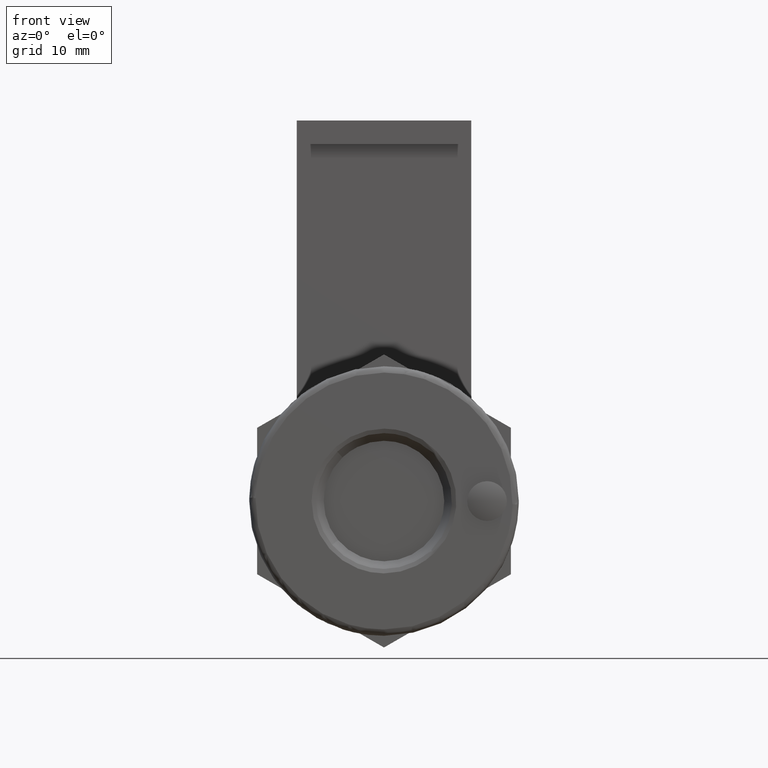
[diagram: clean part render]
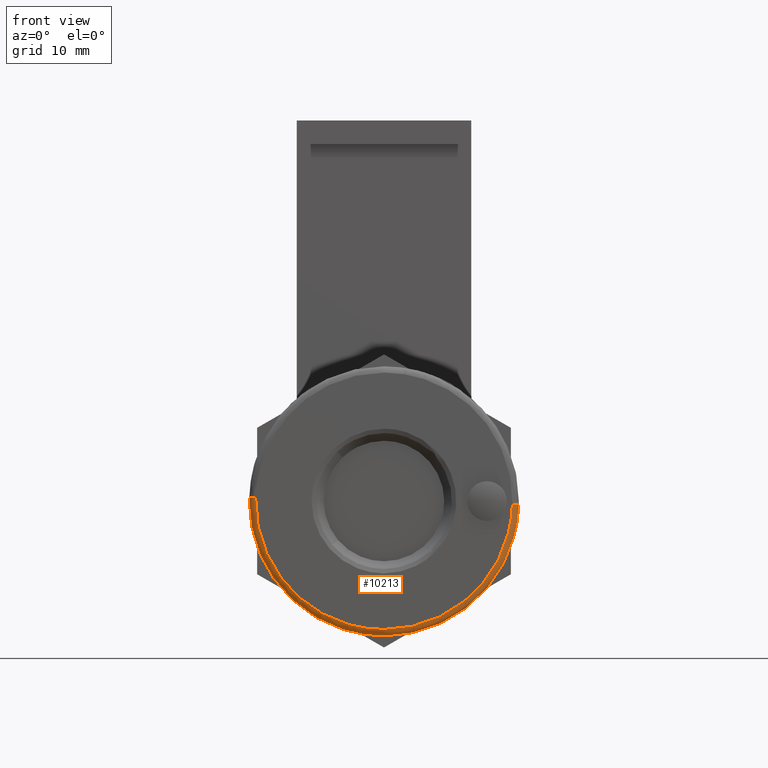
[diagram: same view with one face highlighted and labeled with its STEP entity id]
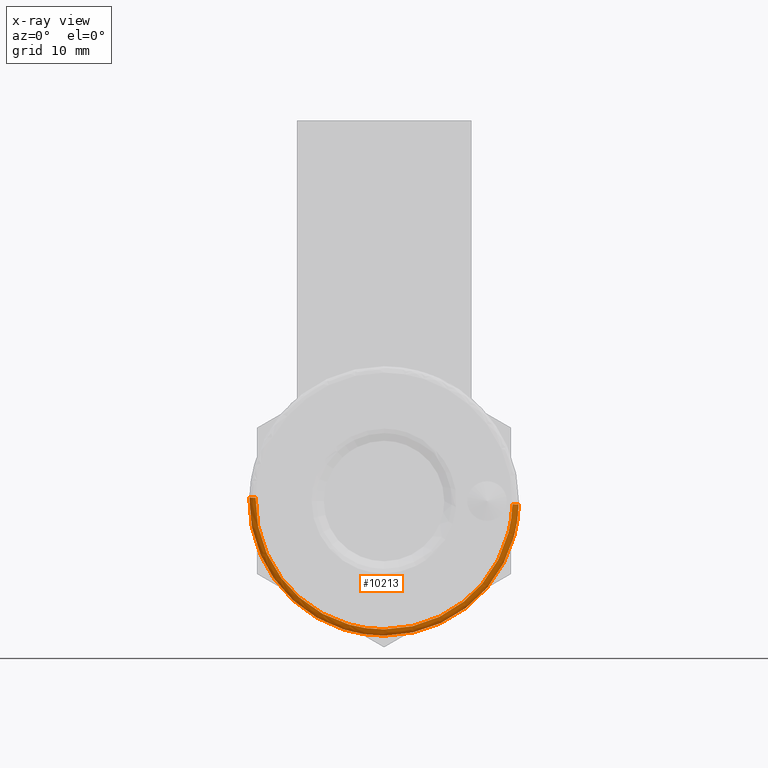
[diagram: x-ray of the same camera — body ghosted, the highlighted face saturated]
A machine part, front view. The second image highlights one B-rep face of the part: STEP entity #10213.
The next image is the same camera in x-ray: the body ghosted, the highlighted face saturated — about 0% of this face is hidden behind the body in this view.
In plain terms, the highlighted face is a freeform B-spline surface patch.
Its self-contained STEP definition (entity closure, byte-faithful):
#9337=CARTESIAN_POINT('',(0.799999997301152,16.994631217812518,0.427211622679786));
#9338=VERTEX_POINT('',#9337);
#9349=CARTESIAN_POINT('',(0.800000000000210,1.421085E-014,17.0));
#9350=VERTEX_POINT('',#9349);
#9351=CARTESIAN_POINT('',(0.800000000000210,1.421085E-014,17.0));
#9352=CARTESIAN_POINT('',(0.800000000000218,0.957984808335727,17.000049887310400));
#9353=CARTESIAN_POINT('',(0.799999999971894,3.010827373990566,16.826118522341769));
#9354=CARTESIAN_POINT('',(0.799999999848426,5.796921117886202,16.068031509752000));
#9355=CARTESIAN_POINT('',(0.799999999664894,8.223736378310123,14.941055646660971));
#9356=CARTESIAN_POINT('',(0.799999999464875,10.124646132967120,13.712975426185141));
#9357=CARTESIAN_POINT('',(0.799999999241822,11.749472211458720,12.343289359097870));
#9358=CARTESIAN_POINT('',(0.799999998931308,13.524699678279079,10.436787114206380));
#9359=CARTESIAN_POINT('',(0.799999998556414,15.034913605089420,8.134666476141600));
#9360=CARTESIAN_POINT('',(0.799999998154912,16.075423014479199,5.669524911182716));
#9361=CARTESIAN_POINT('',(0.799999997757236,16.758312459257560,3.227641466522777));
#9362=CARTESIAN_POINT('',(0.799999997479409,16.967254827758229,1.521721987730799));
#9363=CARTESIAN_POINT('',(0.799999997301152,16.994631217812518,0.427211622679786));
#9364=B_SPLINE_CURVE_WITH_KNOTS('',3,(#9351,#9352,#9353,#9354,#9355,#9356,#9357,#9358,#9359,#9360,#9361,#9362,#9363),.UNSPECIFIED.,.F.,.U.,(4,1,1,1,1,1,1,1,1,1,4),(0.000000027894043,2.873978014630147,6.158539245502933,8.621969826076352,10.880113673222411,12.932941792970540,14.985761855693619,18.680904777759821,21.144327423321780,22.991901103251141,26.276440593532332),.UNSPECIFIED.);
#9365=EDGE_CURVE('',#9350,#9338,#9364,.T.);
#9367=CARTESIAN_POINT('',(0.799999997301152,-16.994631217812490,-0.427211622679783));
#9368=VERTEX_POINT('',#9367);
#9369=CARTESIAN_POINT('',(0.799999997301152,-16.994631217812490,-0.427211622679783));
#9370=CARTESIAN_POINT('',(0.799999997651287,-17.027748608738388,0.879476017665044));
#9371=CARTESIAN_POINT('',(0.799999998192830,-16.835103370195309,3.004443730567509));
#9372=CARTESIAN_POINT('',(0.799999998914905,-15.953005778042790,6.104414198262641));
#9373=CARTESIAN_POINT('',(0.799999999435558,-14.775325191329109,8.570498287011610));
#9374=CARTESIAN_POINT('',(0.799999999832811,-13.265499390198070,10.712817765383500));
#9375=CARTESIAN_POINT('',(0.800000000140554,-11.484227544279671,12.633116722410771));
#9376=CARTESIAN_POINT('',(0.800000000330525,-9.471695824640918,14.207796457389550));
#9377=CARTESIAN_POINT('',(0.800000000403983,-7.205902115811393,15.450908073042900));
#9378=CARTESIAN_POINT('',(0.800000000383692,-5.160226989811863,16.246541639010559));
#9379=CARTESIAN_POINT('',(0.800000000270020,-2.755429219076639,16.843023292050749));
#9380=CARTESIAN_POINT('',(0.800000000116028,-1.024473124510292,17.000111515412492));
#9381=CARTESIAN_POINT('',(0.800000000000210,1.421085E-014,17.0));
#9382=B_SPLINE_CURVE_WITH_KNOTS('',3,(#9369,#9370,#9371,#9372,#9373,#9374,#9375,#9376,#9377,#9378,#9379,#9380,#9381),.UNSPECIFIED.,.F.,.U.,(4,1,1,1,1,1,1,1,1,1,4),(0.000000097994000,3.921251115560814,6.358787924609974,9.644188175474525,12.081746503920870,14.201267938768160,17.486654038933491,19.712248157925711,21.937839954681831,24.057437702664121,27.130838089697111),.UNSPECIFIED.);
#9383=EDGE_CURVE('',#9368,#9350,#9382,.T.);
#10081=CARTESIAN_POINT('',(2.119420E-013,16.194883902383271,0.407107548009131));
#10082=VERTEX_POINT('',#10081);
#10104=CARTESIAN_POINT('',(0.799999997301152,16.994631217812518,0.427211622679786));
#10105=CARTESIAN_POINT('',(0.708383483991464,16.994663095041279,0.427212423994227));
#10106=CARTESIAN_POINT('',(0.498877235063490,16.958389606445220,0.426300579797919));
#10107=CARTESIAN_POINT('',(0.249680126546397,16.800610979620480,0.422334335401725));
#10108=CARTESIAN_POINT('',(0.052596047056898,16.534879153950481,0.415654359923550));
#10109=CARTESIAN_POINT('',(-0.000258821947855,16.325804270563111,0.410398628564504));
#10110=CARTESIAN_POINT('',(2.119420E-013,16.194883902383271,0.407107548009131));
#10111=B_SPLINE_CURVE_WITH_KNOTS('',3,(#10104,#10105,#10106,#10107,#10108,#10109,#10110),.UNSPECIFIED.,.F.,.U.,(4,1,1,1,4),(0.000000245356351,0.274916071831358,0.628381905758257,0.864011418790806,1.256763093238328),.UNSPECIFIED.);
#10112=EDGE_CURVE('',#9338,#10082,#10111,.T.);
#10118=CARTESIAN_POINT('',(2.119420E-013,-16.194883902383239,-0.407107548009126));
#10119=VERTEX_POINT('',#10118);
#10120=CARTESIAN_POINT('',(0.799999997301152,-16.994631217812490,-0.427211622679783));
#10121=CARTESIAN_POINT('',(0.682161469407786,-16.994786036646950,-0.427215514499692));
#10122=CARTESIAN_POINT('',(0.446679803042666,-16.941701379555340,-0.425881070587793));
#10123=CARTESIAN_POINT('',(0.171694080871655,-16.727281458855622,-0.420490975463850));
#10124=CARTESIAN_POINT('',(0.027134604974728,-16.456613267030619,-0.413686909459023));
#10125=CARTESIAN_POINT('',(-0.000012719167981,-16.273387915968382,-0.409080984505097));
#10126=CARTESIAN_POINT('',(2.119420E-013,-16.194883902383239,-0.407107548009126));
#10127=B_SPLINE_CURVE_WITH_KNOTS('',3,(#10120,#10121,#10122,#10123,#10124,#10125,#10126),.UNSPECIFIED.,.F.,.U.,(4,1,1,1,4),(0.000000245356993,0.353472112250351,0.706915136914785,1.021133581480998,1.256763093238323),.UNSPECIFIED.);
#10128=EDGE_CURVE('',#9368,#10119,#10127,.T.);
#10149=CARTESIAN_POINT('',(0.855779373388049,-16.992684876978007,-0.427162695353981));
#10150=CARTESIAN_POINT('',(0.855779373388049,-17.419847572331999,16.565522181624051));
#10151=CARTESIAN_POINT('',(0.855779373388049,-0.427162695353968,16.992684876978029));
#10152=CARTESIAN_POINT('',(0.855779373388049,16.565522181624051,17.419847572331999));
#10153=CARTESIAN_POINT('',(0.855779373388049,16.992684876978039,0.427162695353983));
#10154=CARTESIAN_POINT('',(-0.061869172303197,-17.056803040791142,-0.428774499955423));
#10155=CARTESIAN_POINT('',(-0.061869172303197,-17.485577540746569,16.628028540835736));
#10156=CARTESIAN_POINT('',(-0.061869172303197,-0.428774499955410,17.056803040791156));
#10157=CARTESIAN_POINT('',(-0.061869172303197,16.628028540835746,17.485577540746583));
#10158=CARTESIAN_POINT('',(-0.061869172303197,17.056803040791173,0.428774499955425));
#10159=CARTESIAN_POINT('',(0.001926156983947,-16.139420390296017,-0.405713303417412));
#10160=CARTESIAN_POINT('',(0.001926156983947,-16.545133693713424,15.733707086878622));
#10161=CARTESIAN_POINT('',(0.001926156983947,-0.405713303417399,16.139420390296028));
#10162=CARTESIAN_POINT('',(0.001926156983947,15.733707086878622,16.545133693713442));
#10163=CARTESIAN_POINT('',(0.001926156983947,16.139420390296042,0.405713303417414));
#10171=(BOUNDED_SURFACE()B_SPLINE_SURFACE(2,2,((#10149,#10154,#10159),(#10150,#10155,#10160),(#10151,#10156,#10161),(#10152,#10157,#10162),(#10153,#10158,#10163)),.UNSPECIFIED.,.F.,.F.,.U.)B_SPLINE_SURFACE_WITH_KNOTS((3,2,3),(3,3),(0.0,28.163296419532831,56.326592839065668),(0.0,1.457896942601028),.UNSPECIFIED.)GEOMETRIC_REPRESENTATION_ITEM()RATIONAL_B_SPLINE_SURFACE(((0.910892954670255,0.599412787746450,0.915966905091292),(0.644098585182388,0.423848846945447,0.647686409932507),(0.910892954670255,0.599412787746450,0.915966905091292),(0.644098585182388,0.423848846945447,0.647686409932507),(0.910892954670255,0.599412787746450,0.915966905091292)))REPRESENTATION_ITEM('')SURFACE());
#10172=CARTESIAN_POINT('',(2.102762E-013,1.421085E-014,16.199999999999999));
#10173=VERTEX_POINT('',#10172);
#10174=CARTESIAN_POINT('',(2.102762E-013,1.421085E-014,16.199999999999999));
#10175=CARTESIAN_POINT('',(2.102762E-013,1.108530411391905,16.200135026003590));
#10176=CARTESIAN_POINT('',(2.103003E-013,3.325536702764067,15.971590973786579));
#10177=CARTESIAN_POINT('',(2.104030E-013,6.386542486899042,14.998159470951180));
#10178=CARTESIAN_POINT('',(2.105490E-013,8.913178524880699,13.613966140883649));
#10179=CARTESIAN_POINT('',(2.107020E-013,10.766484964511140,12.163149296449170));
#10180=CARTESIAN_POINT('',(2.108734E-013,12.373712739606381,10.538052628829959));
#10181=CARTESIAN_POINT('',(2.110615E-013,13.704204606170020,8.754713287625911));
#10182=CARTESIAN_POINT('',(2.113109E-013,14.965395270240201,6.390631681285973));
#10183=CARTESIAN_POINT('',(2.115988E-013,15.891267674538581,3.660837176038888));
#10184=CARTESIAN_POINT('',(2.118251E-013,16.167198022052482,1.515303673087563));
#10185=CARTESIAN_POINT('',(2.119420E-013,16.194883902383271,0.407107548009131));
#10186=B_SPLINE_CURVE_WITH_KNOTS('',3,(#10174,#10175,#10176,#10177,#10178,#10179,#10180,#10181,#10182,#10183,#10184,#10185),.UNSPECIFIED.,.F.,.U.,(4,1,1,1,1,1,1,1,1,4),(0.000000023156186,3.325583551896774,6.651226521053328,9.585616189304396,11.933085091727870,13.693683239121100,16.432414006914371,18.584302920126859,21.714296198901909,25.039902228849279),.UNSPECIFIED.);
#10187=EDGE_CURVE('',#10173,#10082,#10186,.T.);
#10188=ORIENTED_EDGE('',*,*,#10187,.F.);
#10189=CARTESIAN_POINT('',(2.119420E-013,-16.194883902383239,-0.407107548009126));
#10190=CARTESIAN_POINT('',(2.116850E-013,-16.232611441629199,1.073675814068565));
#10191=CARTESIAN_POINT('',(2.112656E-013,-15.943091912679311,3.639968929143262));
#10192=CARTESIAN_POINT('',(2.108137E-013,-14.809449278116560,6.755689157491808));
#10193=CARTESIAN_POINT('',(2.104933E-013,-13.407782964116199,9.219319430203273));
#10194=CARTESIAN_POINT('',(2.103363E-013,-12.282120340151851,10.613617530687231));
#10195=CARTESIAN_POINT('',(2.102595E-013,-11.527586346532200,11.382460471826811));
#10196=CARTESIAN_POINT('',(2.102526E-013,-11.455991205640530,11.453662483679141));
#10197=CARTESIAN_POINT('',(2.102431E-013,-11.360950888059429,11.549052204998260));
#10198=CARTESIAN_POINT('',(2.101613E-013,-10.493493878210820,12.395451237863320));
#10199=CARTESIAN_POINT('',(2.100718E-013,-9.027351326749752,13.542169865997881));
#10200=CARTESIAN_POINT('',(2.100242E-013,-6.687265897270203,14.816696882147969));
#10201=CARTESIAN_POINT('',(2.100512E-013,-3.837468734004559,15.874504435417590));
#10202=CARTESIAN_POINT('',(2.101677E-013,-1.481271951384904,16.200491511748691));
#10203=CARTESIAN_POINT('',(2.102762E-013,1.421085E-014,16.199999999999999));
#10204=B_SPLINE_CURVE_WITH_KNOTS('',3,(#10189,#10190,#10191,#10192,#10193,#10194,#10195,#10196,#10197,#10198,#10199,#10200,#10201,#10202,#10203),.UNSPECIFIED.,.F.,.U.,(4,1,1,1,1,1,1,1,1,1,1,1,4),(0.000235697162498,4.443889103083411,7.675644685838901,9.897493815210055,12.927225125769221,13.028160036621200,13.129153219535660,13.230146402450160,13.432133361481419,16.764899250469188,18.784759582664531,21.410578647009160,25.854210628814119),.UNSPECIFIED.);
#10205=EDGE_CURVE('',#10119,#10173,#10204,.T.);
#10206=ORIENTED_EDGE('',*,*,#10205,.F.);
#10207=ORIENTED_EDGE('',*,*,#10128,.F.);
#10208=ORIENTED_EDGE('',*,*,#9383,.T.);
#10209=ORIENTED_EDGE('',*,*,#9365,.T.);
#10210=ORIENTED_EDGE('',*,*,#10112,.T.);
#10211=EDGE_LOOP('',(#10188,#10206,#10207,#10208,#10209,#10210));
#10212=FACE_OUTER_BOUND('',#10211,.T.);
#10213=ADVANCED_FACE('',(#10212),#10171,.T.);